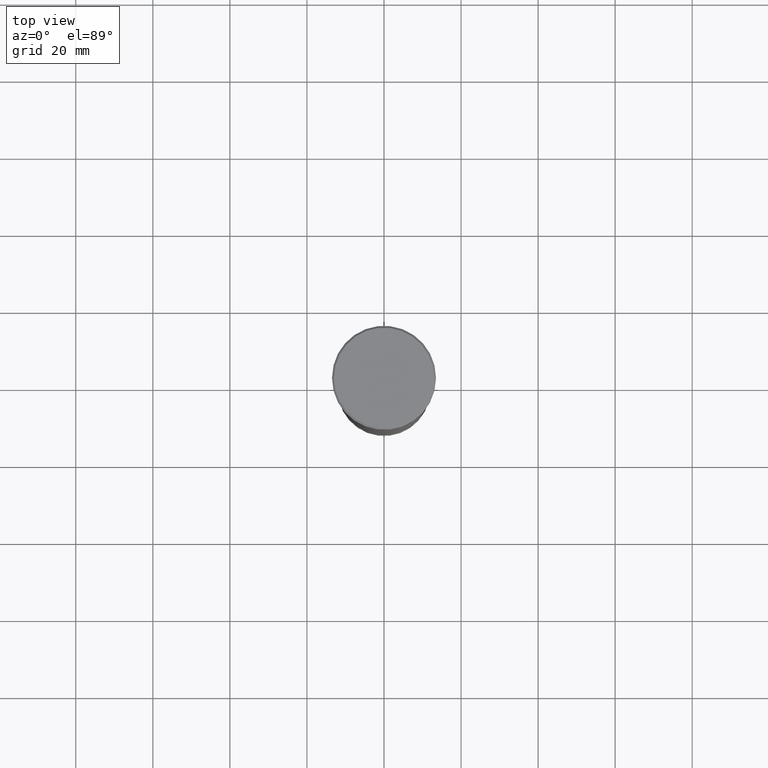
[diagram: clean part render]
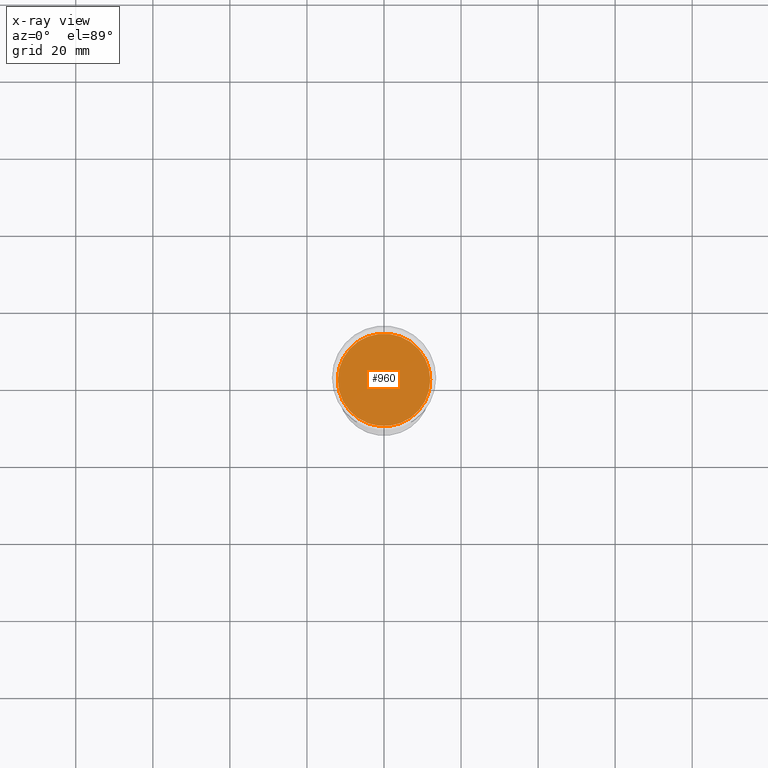
[diagram: x-ray — body ghosted, one internal face saturated and labeled with its STEP entity id]
A machine part, top view, then the same camera in x-ray: the body is ghosted and one INTERNAL B-rep face — a face not visible from any outside direction — is saturated and labeled: STEP entity #960.
In plain terms, the highlighted planar face has unit normal (0, 0, -1).
Its self-contained STEP definition (entity closure, byte-faithful):
#11 = EDGE_CURVE ( 'NONE', #423, #629, #511, .T. ) ;
#77 = FACE_OUTER_BOUND ( 'NONE', #313, .T. ) ;
#179 = AXIS2_PLACEMENT_3D ( 'NONE', #910, #460, #821 ) ;
#273 = CARTESIAN_POINT ( 'NONE',  ( 12.00000000000000178, 0.000000000000000000, -33.00000000000000000 ) ) ;
#313 = EDGE_LOOP ( 'NONE', ( #635, #649 ) ) ;
#332 = CARTESIAN_POINT ( 'NONE',  ( 0.000000000000000000, 0.000000000000000000, -33.00000000000000000 ) ) ;
#380 = CARTESIAN_POINT ( 'NONE',  ( 0.000000000000000000, 0.000000000000000000, -33.00000000000000000 ) ) ;
#407 = AXIS2_PLACEMENT_3D ( 'NONE', #332, #598, #498 ) ;
#423 = VERTEX_POINT ( 'NONE', #273 ) ;
#460 = DIRECTION ( 'NONE',  ( 0.000000000000000000, 0.000000000000000000, -1.000000000000000000 ) ) ;
#478 = PLANE ( 'NONE',  #1013 ) ;
#498 = DIRECTION ( 'NONE',  ( -1.000000000000000000, 0.000000000000000000, 0.000000000000000000 ) ) ;
#511 = CIRCLE ( 'NONE', #179, 12.00000000000000178 ) ;
#598 = DIRECTION ( 'NONE',  ( 0.000000000000000000, 0.000000000000000000, -1.000000000000000000 ) ) ;
#620 = CIRCLE ( 'NONE', #407, 12.00000000000000178 ) ;
#629 = VERTEX_POINT ( 'NONE', #999 ) ;
#635 = ORIENTED_EDGE ( 'NONE', *, *, #11, .T. ) ;
#649 = ORIENTED_EDGE ( 'NONE', *, *, #1041, .T. ) ;
#651 = DIRECTION ( 'NONE',  ( -1.000000000000000000, 0.000000000000000000, -0.000000000000000000 ) ) ;
#821 = DIRECTION ( 'NONE',  ( -1.000000000000000000, 0.000000000000000000, 0.000000000000000000 ) ) ;
#910 = CARTESIAN_POINT ( 'NONE',  ( 0.000000000000000000, 0.000000000000000000, -33.00000000000000000 ) ) ;
#960 = ADVANCED_FACE ( 'NONE', ( #77 ), #478, .T. ) ;
#999 = CARTESIAN_POINT ( 'NONE',  ( -12.00000000000000178, 1.469576158976824144E-15, -33.00000000000000000 ) ) ;
#1013 = AXIS2_PLACEMENT_3D ( 'NONE', #380, #1090, #651 ) ;
#1041 = EDGE_CURVE ( 'NONE', #629, #423, #620, .T. ) ;
#1090 = DIRECTION ( 'NONE',  ( 0.000000000000000000, 0.000000000000000000, -1.000000000000000000 ) ) ;